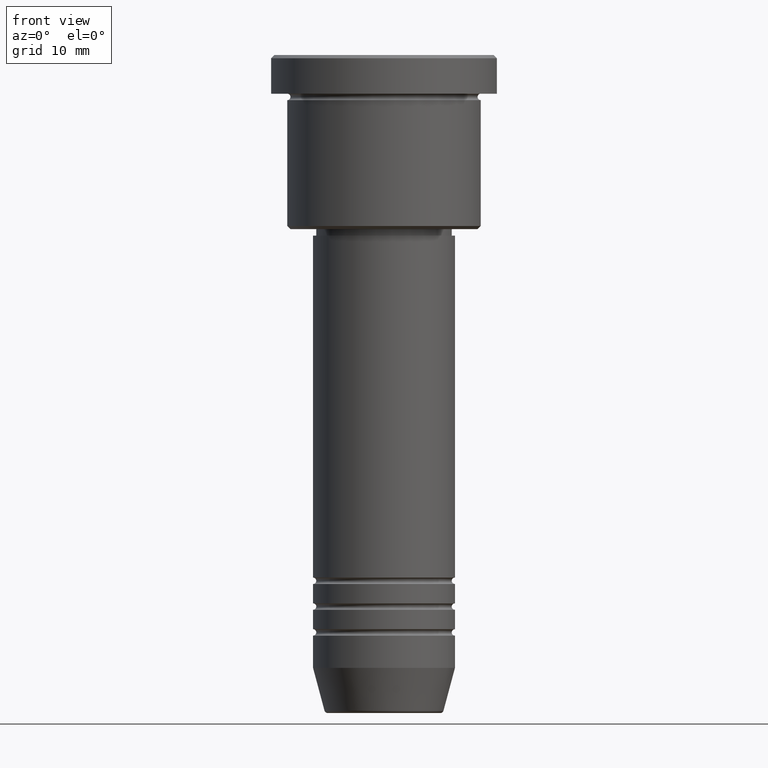
[diagram: clean part render]
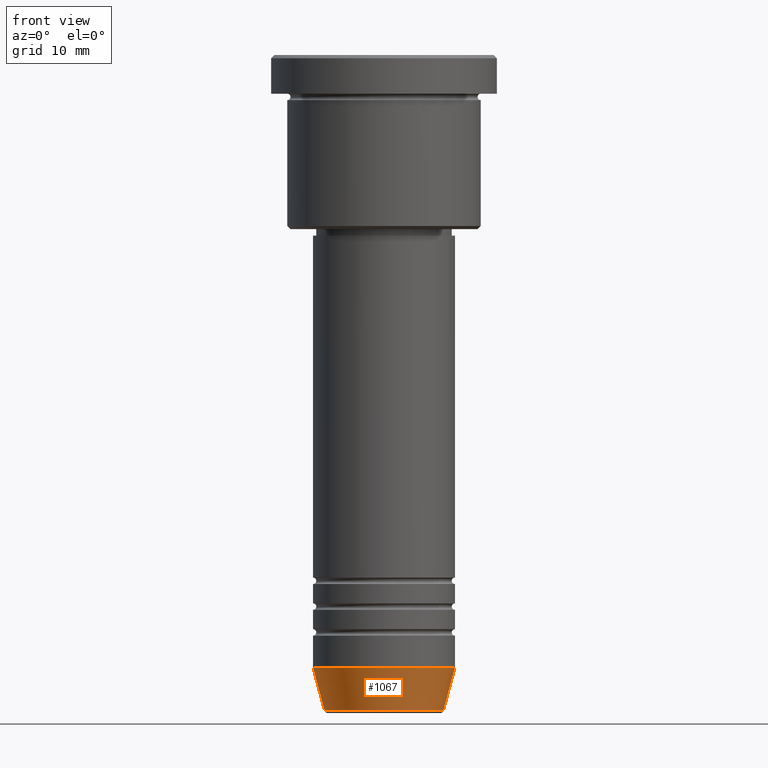
[diagram: same view with one face highlighted and labeled with its STEP entity id]
A machine part, front view. The second image highlights one B-rep face of the part: STEP entity #1067.
In plain terms, the highlighted conical surface has half-angle 15 deg.
Its self-contained STEP definition (entity closure, byte-faithful):
#31 = AXIS2_PLACEMENT_3D ( 'NONE', #582, #679, #675 ) ;
#84 = CARTESIAN_POINT ( 'NONE',  ( -11.00000000000000000, 1.347111479062088405E-15, -95.00000000000000000 ) ) ;
#101 = CARTESIAN_POINT ( 'NONE',  ( 0.000000000000000000, 0.000000000000000000, -95.00000000000000000 ) ) ;
#123 = ORIENTED_EDGE ( 'NONE', *, *, #707, .F. ) ;
#164 = LINE ( 'NONE', #84, #374 ) ;
#197 = DIRECTION ( 'NONE',  ( 1.000000000000000000, 0.000000000000000000, 0.000000000000000000 ) ) ;
#233 = EDGE_CURVE ( 'NONE', #305, #896, #1077, .T. ) ;
#253 = DIRECTION ( 'NONE',  ( -0.2588190451025213501, 3.169619151431772337E-17, 0.9659258262890680902 ) ) ;
#254 = EDGE_LOOP ( 'NONE', ( #123, #942, #1088, #672 ) ) ;
#256 = EDGE_CURVE ( 'NONE', #767, #1122, #564, .T. ) ;
#294 = AXIS2_PLACEMENT_3D ( 'NONE', #837, #952, #964 ) ;
#305 = VERTEX_POINT ( 'NONE', #863 ) ;
#374 = VECTOR ( 'NONE', #253, 1000.000000000000000 ) ;
#468 = DIRECTION ( 'NONE',  ( -0.000000000000000000, -0.000000000000000000, 1.000000000000000000 ) ) ;
#564 = CIRCLE ( 'NONE', #31, 9.223655072137187716 ) ;
#574 = CARTESIAN_POINT ( 'NONE',  ( 11.00000000000000000, 0.000000000000000000, -95.00000000000000000 ) ) ;
#582 = CARTESIAN_POINT ( 'NONE',  ( 0.000000000000000000, 0.000000000000000000, -101.6294095225512564 ) ) ;
#651 = CARTESIAN_POINT ( 'NONE',  ( 9.223655072137187716, 0.000000000000000000, -101.6294095225512564 ) ) ;
#656 = FACE_OUTER_BOUND ( 'NONE', #254, .T. ) ;
#667 = AXIS2_PLACEMENT_3D ( 'NONE', #101, #468, #197 ) ;
#672 = ORIENTED_EDGE ( 'NONE', *, *, #233, .F. ) ;
#675 = DIRECTION ( 'NONE',  ( 1.000000000000000000, 0.000000000000000000, 0.000000000000000000 ) ) ;
#679 = DIRECTION ( 'NONE',  ( -0.000000000000000000, -0.000000000000000000, 1.000000000000000000 ) ) ;
#707 = EDGE_CURVE ( 'NONE', #767, #305, #164, .T. ) ;
#730 = DIRECTION ( 'NONE',  ( 0.2588190451025213501, 0.000000000000000000, 0.9659258262890680902 ) ) ;
#767 = VERTEX_POINT ( 'NONE', #988 ) ;
#804 = EDGE_CURVE ( 'NONE', #1122, #896, #1008, .T. ) ;
#837 = CARTESIAN_POINT ( 'NONE',  ( 0.000000000000000000, 0.000000000000000000, -95.00000000000000000 ) ) ;
#863 = CARTESIAN_POINT ( 'NONE',  ( -11.00000000000000000, 1.347111479062088405E-15, -95.00000000000000000 ) ) ;
#896 = VERTEX_POINT ( 'NONE', #574 ) ;
#909 = CONICAL_SURFACE ( 'NONE', #667, 11.00000000000000000, 0.2617993877991500740 ) ;
#929 = CARTESIAN_POINT ( 'NONE',  ( 11.00000000000000000, 0.000000000000000000, -95.00000000000000000 ) ) ;
#942 = ORIENTED_EDGE ( 'NONE', *, *, #256, .T. ) ;
#952 = DIRECTION ( 'NONE',  ( -0.000000000000000000, -0.000000000000000000, 1.000000000000000000 ) ) ;
#964 = DIRECTION ( 'NONE',  ( 1.000000000000000000, 0.000000000000000000, 0.000000000000000000 ) ) ;
#988 = CARTESIAN_POINT ( 'NONE',  ( -9.223655072137187716, 1.238341722557647004E-15, -101.6294095225512564 ) ) ;
#1008 = LINE ( 'NONE', #929, #1040 ) ;
#1040 = VECTOR ( 'NONE', #730, 1000.000000000000000 ) ;
#1067 = ADVANCED_FACE ( 'NONE', ( #656 ), #909, .T. ) ;
#1077 = CIRCLE ( 'NONE', #294, 11.00000000000000000 ) ;
#1088 = ORIENTED_EDGE ( 'NONE', *, *, #804, .T. ) ;
#1122 = VERTEX_POINT ( 'NONE', #651 ) ;